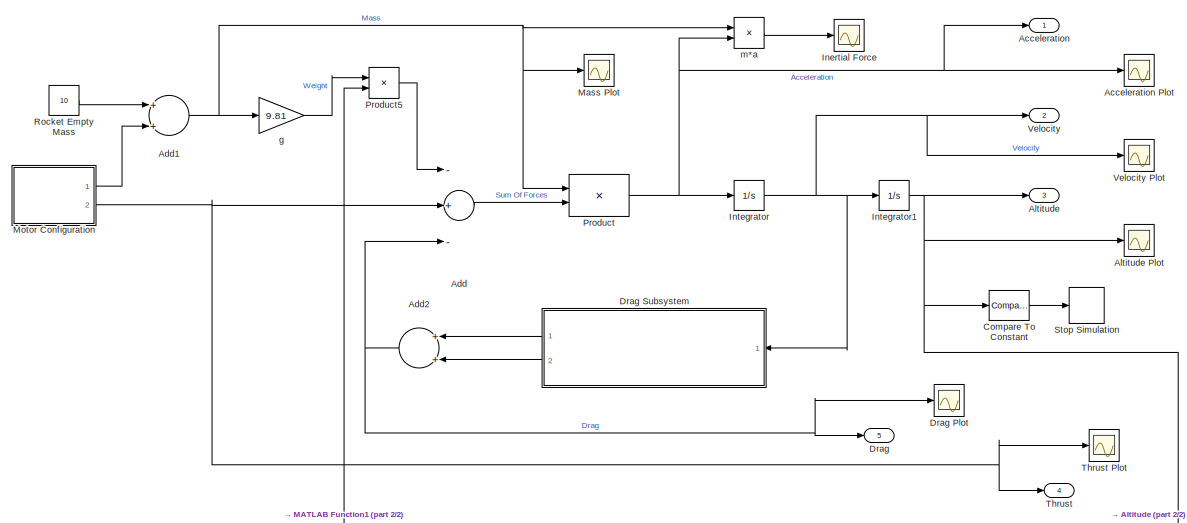
[diagram: root canvas - part 1/2, full width, top band]
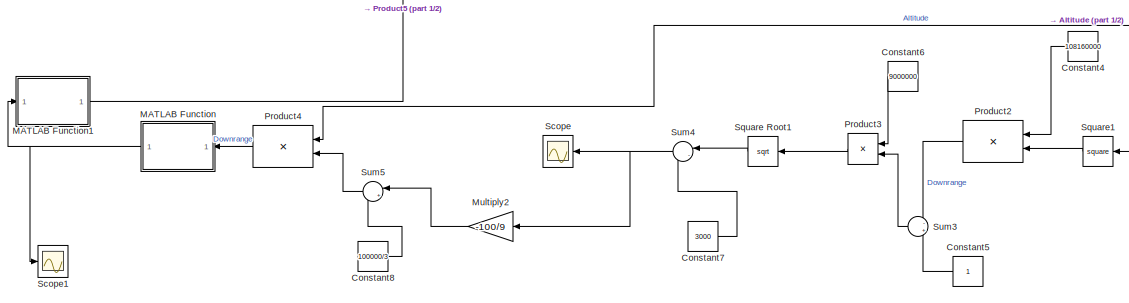
[diagram: root canvas - part 2/2, full width, bottom band]
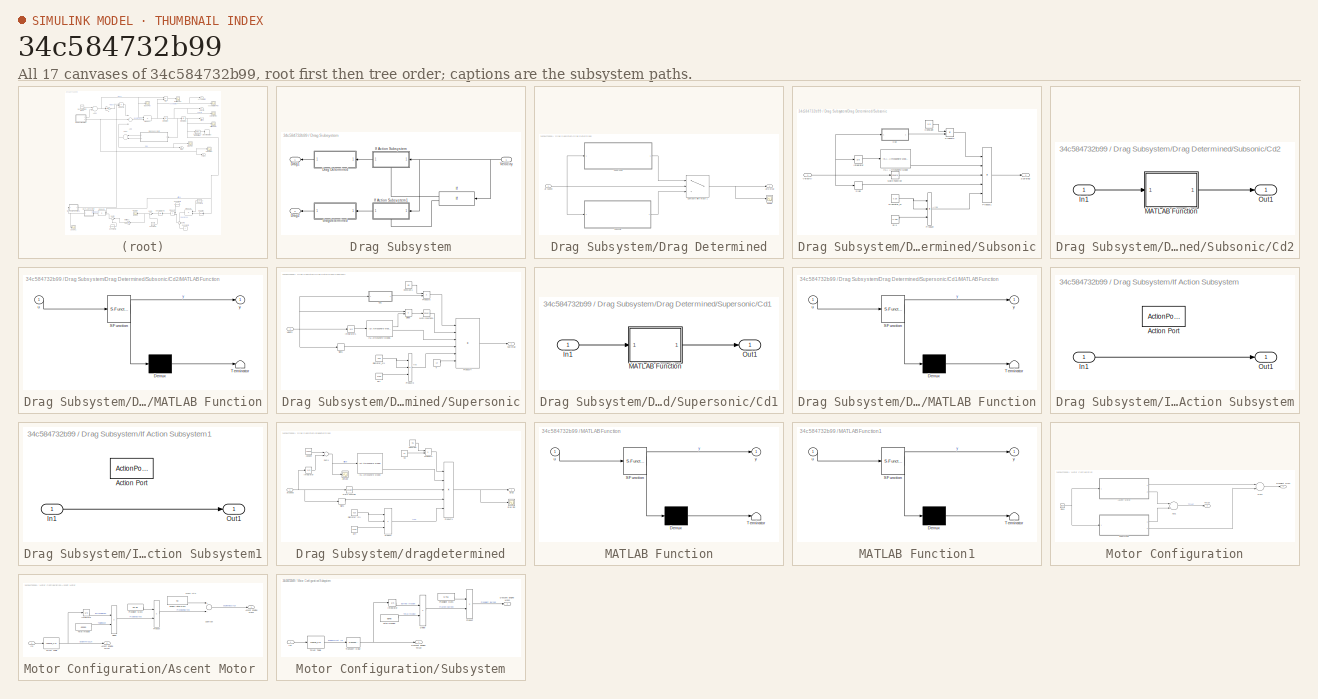
[diagram: thumbnail index - all 17 canvases of the model, root first then tree order]
MODEL slx_34c584732b99
KIND model
CONFIG AbsTol = auto
CONFIG EnableMultiTasking = off
CONFIG FixedStep = auto
CONFIG MaxStep = auto
CONFIG MinStep = auto
CONFIG RelTol = 1e-3
CONFIG SampleTimeConstraint = Unconstrained
CONFIG Solver = VariableStepAuto
CONFIG SolverName = VariableStepAuto
CONFIG StartTime = 0.0
CONFIG StopTime = 185
BLOCK [Outport] Acceleration
  IconDisplay = Port number
BLOCK [Scope] Acceleration Plot
  Floating = off
  NumInputPorts = 1
  Ports = [1]
  ScopeSpecificationString = Simulink.scopes.TimeScopeBlockCfg('CurrentConfiguration', extmgr.ConfigurationSet(extmgr.Configuration('Core','General UI',true,'FigureColor',[1 1 1]),extmgr.Configuration('Core','Source UI',true),extmgr.Configuration('Sources','WiredSimulink',true,'DataLoggingVariableName','ScopeData2'),extmgr.Configuration('Visuals','Time Domain',true,'SerializedDisplays',{struct('MinYLimReal','-147.90855','MaxY...<+1684ch>
BLOCK [Sum] Add
  InputSameDT = off
  Inputs = -+-
  OutDataTypeStr = Inherit: Inherit via internal rule
  Ports = [3, 1]
  SaturateOnIntegerOverflow = off
BLOCK [Sum] Add1
  InputSameDT = off
  OutDataTypeStr = Inherit: Inherit via internal rule
  Ports = [2, 1]
  SaturateOnIntegerOverflow = off
BLOCK [Sum] Add2
  InputSameDT = off
  OutDataTypeStr = Inherit: Inherit via internal rule
  Ports = [2, 1]
  SaturateOnIntegerOverflow = off
BLOCK [Outport] Altitude
  IconDisplay = Port number
  Port = 3
BLOCK [Scope] Altitude Plot
  Floating = off
  NumInputPorts = 1
  Ports = [1]
  ScopeSpecificationString = Simulink.scopes.TimeScopeBlockCfg('CurrentConfiguration', extmgr.ConfigurationSet(extmgr.Configuration('Core','General UI',true,'FigureColor',[1 1 1]),extmgr.Configuration('Core','Source UI',true),extmgr.Configuration('Sources','WiredSimulink',true,'DataLoggingVariableName','Alti','DataLogging',true,'DataLoggingSaveFormat','Array'),extmgr.Configuration('Visuals','Time Domain',true,'SerializedDispl...<+1757ch>
BLOCK [Reference] Compare To Constant  REF=simulink/Logic and Bit
Operations/Compare
To Constant
  Ports = [1, 1]
  SourceBlock = simulink/Logic and Bit\nOperations/Compare\nTo Constant
  SourceProductBaseCode = SL
  SourceProductName = Simulink
  SourceType = Compare To Constant
BLOCK [Constant] Constant4
  Value = 108160000
BLOCK [Constant] Constant5
BLOCK [Constant] Constant6
  Value = 9000000
BLOCK [Constant] Constant7
  Value = 3000
BLOCK [Constant] Constant8
  Value = 100000/3
BLOCK [Outport] Drag
  IconDisplay = Port number
  Port = 5
BLOCK [Scope] Drag Plot
  Floating = off
  NumInputPorts = 1
  Ports = [1]
  ScopeSpecificationString = Simulink.scopes.TimeScopeBlockCfg('CurrentConfiguration', extmgr.ConfigurationSet(extmgr.Configuration('Core','General UI',true,'FigureColor',[1 1 1]),extmgr.Configuration('Core','Source UI',true),extmgr.Configuration('Sources','WiredSimulink',true),extmgr.Configuration('Visuals','Time Domain',true,'SerializedDisplays',{struct('MinYLimReal','-729.05336','MaxYLimReal','4056.061','YLabelReal','Drag ...<+1598ch>
BLOCK [SubSystem] Drag Subsystem
  Ports = [1, 2]
  RequestExecContextInheritance = off
BLOCK [SubSystem] Drag Subsystem/Drag Determined
  Ports = [1, 1]
  RequestExecContextInheritance = off
BLOCK [Outport] Drag Subsystem/Drag Determined/Aero-drag
  IconDisplay = Port number
BLOCK [Inport] Drag Subsystem/Drag Determined/Air-speed
  IconDisplay = Port number
BLOCK [Switch] Drag Subsystem/Drag Determined/Compare with Mach 1
  Criteria = u2 > Threshold
  InputSameDT = off
  SaturateOnIntegerOverflow = off
  Threshold = 340
BLOCK [Scope] Drag Subsystem/Drag Determined/Scope
  Floating = off
  NumInputPorts = 1
  Ports = [1]
  ScopeSpecificationString = Simulink.scopes.TimeScopeBlockCfg('CurrentConfiguration', extmgr.ConfigurationSet(extmgr.Configuration('Core','General UI',true),extmgr.Configuration('Core','Source UI',true),extmgr.Configuration('Sources','WiredSimulink',true,'DataLoggingVariableName','ScopeData1'),extmgr.Configuration('Visuals','Time Domain',true,'SerializedDisplays',{struct('MinYLimReal','-344.56894','MaxYLimReal','3101.12048',...<+1439ch>
BLOCK [SubSystem] Drag Subsystem/Drag Determined/Subsonic
  Ports = [1, 1]
  RequestExecContextInheritance = off
BLOCK [SubSystem] Drag Subsystem/Drag Determined/Subsonic/Cd2
  Ports = [1, 1]
  RequestExecContextInheritance = off
  TreatAsAtomicUnit = on
BLOCK [Inport] Drag Subsystem/Drag Determined/Subsonic/Cd2/In1
  IconDisplay = Port number
BLOCK [SubSystem] Drag Subsystem/Drag Determined/Subsonic/Cd2/MATLAB Function
  ErrorFcn = Stateflow.Translate.translate
  PermitHierarchicalResolution = ExplicitOnly
  Ports = [1, 1]
  RequestExecContextInheritance = off
  SFBlockType = MATLAB Function
  TreatAsAtomicUnit = on
BLOCK [Demux] Drag Subsystem/Drag Determined/Subsonic/Cd2/MATLAB Function/ Demux 
  Outputs = 1
  Ports = [1, 1]
BLOCK [S-Function] Drag Subsystem/Drag Determined/Subsonic/Cd2/MATLAB Function/ SFunction 
  EnableBusSupport = on
  FunctionName = sf_sfun
  PortCounts = [1 2]
  Ports = [1, 2]
  SFcnIsStateOwnerBlock = off
  SFunctionDeploymentMode = off
  Tag = Stateflow S-Function 2
BLOCK [Terminator] Drag Subsystem/Drag Determined/Subsonic/Cd2/MATLAB Function/ Terminator 
BLOCK [Inport] Drag Subsystem/Drag Determined/Subsonic/Cd2/MATLAB Function/u
  IconDisplay = Port number
BLOCK [Outport] Drag Subsystem/Drag Determined/Subsonic/Cd2/MATLAB Function/y
  IconDisplay = Port number
BLOCK [Outport] Drag Subsystem/Drag Determined/Subsonic/Cd2/Out1
  IconDisplay = Port number
BLOCK [Constant] Drag Subsystem/Drag Determined/Subsonic/Constant
  Value = 0.5
BLOCK [Constant] Drag Subsystem/Drag Determined/Subsonic/Diameter_m
  Value = 0.25
BLOCK [Reference] Drag Subsystem/Drag Determined/Subsonic/ISA Atmosphere Model  REF=aerolibatmos2/ISA Atmosphere Model
  Ports = [1, 4]
  SourceBlock = aerolibatmos2/ISA Atmosphere Model
  SourceProductBaseCode = AE
  SourceProductName = Aerospace Blockset
  SourceType = International Standard Atmosphere Model
BLOCK [Integrator] Drag Subsystem/Drag Determined/Subsonic/Integrator
  Ports = [1, 1]
BLOCK [Math] Drag Subsystem/Drag Determined/Subsonic/Math Function
  Operator = square
  Ports = [1, 1]
BLOCK [Product] Drag Subsystem/Drag Determined/Subsonic/Product
  InputSameDT = off
  Inputs = 3
  OutDataTypeStr = Inherit: Inherit via internal rule
  Ports = [3, 1]
  RndMeth = Floor
  SaturateOnIntegerOverflow = off
BLOCK [Product] Drag Subsystem/Drag Determined/Subsonic/Product1
  InputSameDT = off
  Inputs = 5
  OutDataTypeStr = Inherit: Inherit via internal rule
  Ports = [5, 1]
  RndMeth = Floor
  SaturateOnIntegerOverflow = off
BLOCK [Product] Drag Subsystem/Drag Determined/Subsonic/Product2
  InputSameDT = off
  OutDataTypeStr = Inherit: Inherit via internal rule
  Ports = [2, 1]
  RndMeth = Floor
  SaturateOnIntegerOverflow = off
BLOCK [Signum] Drag Subsystem/Drag Determined/Subsonic/Sign
BLOCK [Outport] Drag Subsystem/Drag Determined/Subsonic/Sub-drag
  IconDisplay = Port number
BLOCK [Inport] Drag Subsystem/Drag Determined/Subsonic/Velocity
  IconDisplay = Port number
BLOCK [Constant] Drag Subsystem/Drag Determined/Subsonic/pi//4
  Value = 0.785
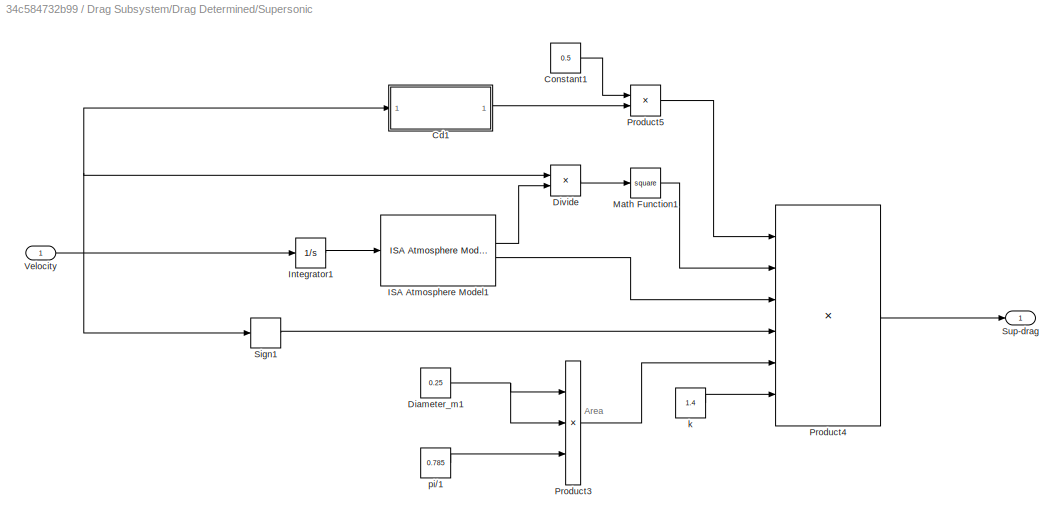
BLOCK [SubSystem] Drag Subsystem/Drag Determined/Supersonic
  Ports = [1, 1]
  RequestExecContextInheritance = off
BLOCK [SubSystem] Drag Subsystem/Drag Determined/Supersonic/Cd1
  Ports = [1, 1]
  RequestExecContextInheritance = off
  TreatAsAtomicUnit = on
BLOCK [Inport] Drag Subsystem/Drag Determined/Supersonic/Cd1/In1
  IconDisplay = Port number
BLOCK [SubSystem] Drag Subsystem/Drag Determined/Supersonic/Cd1/MATLAB Function
  ErrorFcn = Stateflow.Translate.translate
  PermitHierarchicalResolution = ExplicitOnly
  Ports = [1, 1]
  RequestExecContextInheritance = off
  SFBlockType = MATLAB Function
  TreatAsAtomicUnit = on
BLOCK [Demux] Drag Subsystem/Drag Determined/Supersonic/Cd1/MATLAB Function/ Demux 
  Outputs = 1
  Ports = [1, 1]
BLOCK [S-Function] Drag Subsystem/Drag Determined/Supersonic/Cd1/MATLAB Function/ SFunction 
  EnableBusSupport = on
  FunctionName = sf_sfun
  PortCounts = [1 2]
  Ports = [1, 2]
  SFcnIsStateOwnerBlock = off
  SFunctionDeploymentMode = off
  Tag = Stateflow S-Function 1
BLOCK [Terminator] Drag Subsystem/Drag Determined/Supersonic/Cd1/MATLAB Function/ Terminator 
BLOCK [Inport] Drag Subsystem/Drag Determined/Supersonic/Cd1/MATLAB Function/u
  IconDisplay = Port number
BLOCK [Outport] Drag Subsystem/Drag Determined/Supersonic/Cd1/MATLAB Function/y
  IconDisplay = Port number
BLOCK [Outport] Drag Subsystem/Drag Determined/Supersonic/Cd1/Out1
  IconDisplay = Port number
BLOCK [Constant] Drag Subsystem/Drag Determined/Supersonic/Constant1
  Value = 0.5
BLOCK [Constant] Drag Subsystem/Drag Determined/Supersonic/Diameter_m1
  Value = 0.25
BLOCK [Product] Drag Subsystem/Drag Determined/Supersonic/Divide
  InputSameDT = off
  Inputs = */
  OutDataTypeStr = Inherit: Inherit via internal rule
  Ports = [2, 1]
  RndMeth = Floor
  SaturateOnIntegerOverflow = off
BLOCK [Reference] Drag Subsystem/Drag Determined/Supersonic/ISA Atmosphere Model1  REF=aerolibatmos2/ISA Atmosphere Model
  Ports = [1, 4]
  SourceBlock = aerolibatmos2/ISA Atmosphere Model
  SourceProductBaseCode = AE
  SourceProductName = Aerospace Blockset
  SourceType = International Standard Atmosphere Model
BLOCK [Integrator] Drag Subsystem/Drag Determined/Supersonic/Integrator1
  Ports = [1, 1]
BLOCK [Math] Drag Subsystem/Drag Determined/Supersonic/Math Function1
  Operator = square
  Ports = [1, 1]
BLOCK [Product] Drag Subsystem/Drag Determined/Supersonic/Product3
  InputSameDT = off
  Inputs = 3
  OutDataTypeStr = Inherit: Inherit via internal rule
  Ports = [3, 1]
  RndMeth = Floor
  SaturateOnIntegerOverflow = off
BLOCK [Product] Drag Subsystem/Drag Determined/Supersonic/Product4
  InputSameDT = off
  Inputs = 6
  OutDataTypeStr = Inherit: Inherit via internal rule
  Ports = [6, 1]
  RndMeth = Floor
  SaturateOnIntegerOverflow = off
BLOCK [Product] Drag Subsystem/Drag Determined/Supersonic/Product5
  InputSameDT = off
  OutDataTypeStr = Inherit: Inherit via internal rule
  Ports = [2, 1]
  RndMeth = Floor
  SaturateOnIntegerOverflow = off
BLOCK [Signum] Drag Subsystem/Drag Determined/Supersonic/Sign1
BLOCK [Outport] Drag Subsystem/Drag Determined/Supersonic/Sup-drag
  IconDisplay = Port number
BLOCK [Inport] Drag Subsystem/Drag Determined/Supersonic/Velocity
  IconDisplay = Port number
BLOCK [Constant] Drag Subsystem/Drag Determined/Supersonic/k
  Value = 1.4
BLOCK [Constant] Drag Subsystem/Drag Determined/Supersonic/pi//1
  Value = 0.785
BLOCK [Outport] Drag Subsystem/Drag1
  IconDisplay = Port number
BLOCK [Outport] Drag Subsystem/Drag2
  IconDisplay = Port number
  Port = 2
BLOCK [If] Drag Subsystem/If
  Ports = [1, 2]
BLOCK [SubSystem] Drag Subsystem/If Action Subsystem
  Ports = [1, 1, 0, 0, 0, 0, 0, 1]
  RequestExecContextInheritance = off
  TreatAsAtomicUnit = on
BLOCK [ActionPort] Drag Subsystem/If Action Subsystem/Action Port
  ActionPortLabel = if(u1 > 0)
BLOCK [Inport] Drag Subsystem/If Action Subsystem/In1
  IconDisplay = Port number
BLOCK [Outport] Drag Subsystem/If Action Subsystem/Out1
  IconDisplay = Port number
BLOCK [SubSystem] Drag Subsystem/If Action Subsystem1
  Ports = [1, 1, 0, 0, 0, 0, 0, 1]
  RequestExecContextInheritance = off
  TreatAsAtomicUnit = on
BLOCK [ActionPort] Drag Subsystem/If Action Subsystem1/Action Port
  ActionPortLabel = else
BLOCK [Inport] Drag Subsystem/If Action Subsystem1/In1
  IconDisplay = Port number
BLOCK [Outport] Drag Subsystem/If Action Subsystem1/Out1
  IconDisplay = Port number
BLOCK [Inport] Drag Subsystem/Velocity
  IconDisplay = Port number
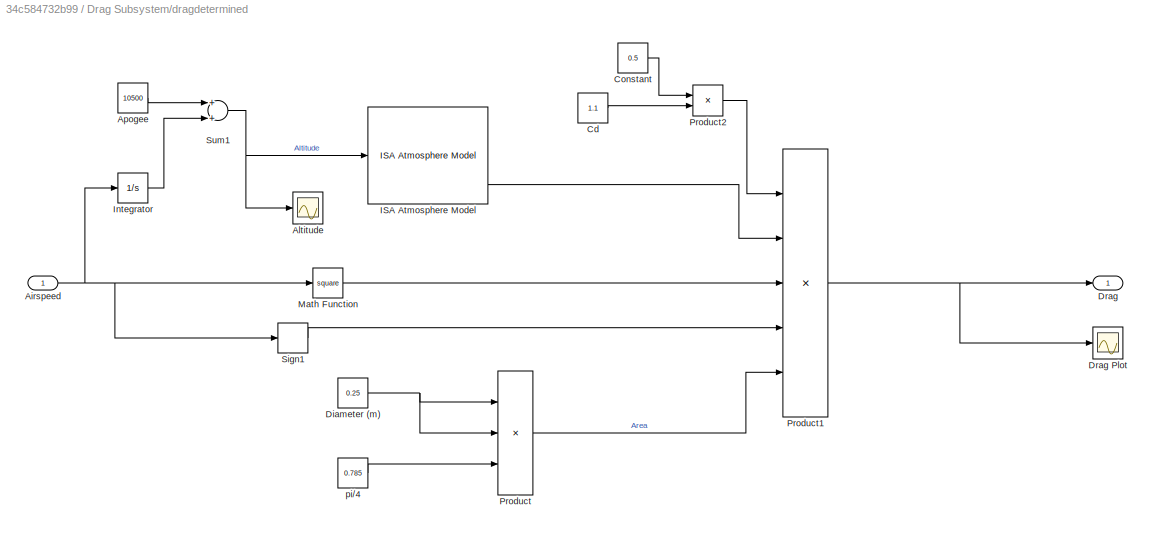
BLOCK [SubSystem] Drag Subsystem/dragdetermined
  Ports = [1, 1]
  RequestExecContextInheritance = off
BLOCK [Inport] Drag Subsystem/dragdetermined/Airspeed
  IconDisplay = Port number
BLOCK [Scope] Drag Subsystem/dragdetermined/Altitude 
  Floating = off
  NumInputPorts = 1
  Ports = [1]
  ScopeSpecificationString = Simulink.scopes.TimeScopeBlockCfg('CurrentConfiguration', extmgr.ConfigurationSet(extmgr.Configuration('Core','General UI',true),extmgr.Configuration('Core','Source UI',true),extmgr.Configuration('Sources','WiredSimulink',true,'DataLoggingVariableName','ScopeData2'),extmgr.Configuration('Visuals','Time Domain',true,'SerializedDisplays',{struct('MinYLimReal','-1800.41568','MaxYLimReal','11311.1573'...<+1439ch>
BLOCK [Constant] Drag Subsystem/dragdetermined/Apogee
  Value = 10500
BLOCK [Constant] Drag Subsystem/dragdetermined/Cd
  Value = 1.1
BLOCK [Constant] Drag Subsystem/dragdetermined/Constant
  Value = 0.5
BLOCK [Constant] Drag Subsystem/dragdetermined/Diameter (m)
  Value = 0.25
BLOCK [Outport] Drag Subsystem/dragdetermined/Drag
  IconDisplay = Port number
BLOCK [Scope] Drag Subsystem/dragdetermined/Drag Plot 
  Floating = off
  NumInputPorts = 1
  Ports = [1]
  ScopeSpecificationString = Simulink.scopes.TimeScopeBlockCfg('CurrentConfiguration', extmgr.ConfigurationSet(extmgr.Configuration('Core','General UI',true),extmgr.Configuration('Core','Source UI',true),extmgr.Configuration('Sources','WiredSimulink',true,'DataLoggingVariableName','ScopeData1'),extmgr.Configuration('Visuals','Time Domain',true,'SerializedDisplays',{struct('MinYLimReal','-270.61807','MaxYLimReal','2435.56264',...<+1439ch>
BLOCK [Reference] Drag Subsystem/dragdetermined/ISA Atmosphere Model  REF=aerolibatmos2/ISA Atmosphere Model
  Ports = [1, 4]
  SourceBlock = aerolibatmos2/ISA Atmosphere Model
  SourceProductBaseCode = AE
  SourceProductName = Aerospace Blockset
  SourceType = International Standard Atmosphere Model
BLOCK [Integrator] Drag Subsystem/dragdetermined/Integrator
  Ports = [1, 1]
BLOCK [Math] Drag Subsystem/dragdetermined/Math Function
  Operator = square
  Ports = [1, 1]
BLOCK [Product] Drag Subsystem/dragdetermined/Product
  InputSameDT = off
  Inputs = 3
  OutDataTypeStr = Inherit: Inherit via internal rule
  Ports = [3, 1]
  RndMeth = Floor
  SaturateOnIntegerOverflow = off
BLOCK [Product] Drag Subsystem/dragdetermined/Product1
  InputSameDT = off
  Inputs = 5
  OutDataTypeStr = Inherit: Inherit via internal rule
  Ports = [5, 1]
  RndMeth = Floor
  SaturateOnIntegerOverflow = off
BLOCK [Product] Drag Subsystem/dragdetermined/Product2
  InputSameDT = off
  OutDataTypeStr = Inherit: Inherit via internal rule
  Ports = [2, 1]
  RndMeth = Floor
  SaturateOnIntegerOverflow = off
BLOCK [Signum] Drag Subsystem/dragdetermined/Sign1
BLOCK [Sum] Drag Subsystem/dragdetermined/Sum1
  InputSameDT = off
  OutDataTypeStr = Inherit: Inherit via internal rule
  Ports = [2, 1]
  SaturateOnIntegerOverflow = off
BLOCK [Constant] Drag Subsystem/dragdetermined/pi//4
  Value = 0.785
BLOCK [Scope] Inertial Force
  Floating = off
  NumInputPorts = 1
  Ports = [1]
  ScopeSpecificationString = Simulink.scopes.TimeScopeBlockCfg('CurrentConfiguration', extmgr.ConfigurationSet(extmgr.Configuration('Core','General UI',true,'FigureColor',[1 1 1]),extmgr.Configuration('Core','Source UI',true),extmgr.Configuration('Sources','WiredSimulink',true,'DataLoggingVariableName','ScopeData1'),extmgr.Configuration('Visuals','Time Domain',true,'SerializedDisplays',{struct('MinYLimReal','-3845.94652','Max...<+1674ch>
BLOCK [Integrator] Integrator
  Ports = [1, 1]
BLOCK [Integrator] Integrator1
  Ports = [1, 1]
BLOCK [SubSystem] MATLAB Function
  ErrorFcn = Stateflow.Translate.translate
  PermitHierarchicalResolution = ExplicitOnly
  Ports = [1, 1]
  RequestExecContextInheritance = off
  SFBlockType = MATLAB Function
  TreatAsAtomicUnit = on
BLOCK [Demux] MATLAB Function/ Demux 
  Outputs = 1
  Ports = [1, 1]
BLOCK [S-Function] MATLAB Function/ SFunction 
  EnableBusSupport = on
  FunctionName = sf_sfun
  PortCounts = [1 2]
  Ports = [1, 2]
  SFcnIsStateOwnerBlock = off
  SFunctionDeploymentMode = off
  Tag = Stateflow S-Function 3
BLOCK [Terminator] MATLAB Function/ Terminator 
BLOCK [Inport] MATLAB Function/u
  IconDisplay = Port number
BLOCK [Outport] MATLAB Function/y
  IconDisplay = Port number
BLOCK [SubSystem] MATLAB Function1
  ErrorFcn = Stateflow.Translate.translate
  PermitHierarchicalResolution = ExplicitOnly
  Ports = [1, 1]
  RequestExecContextInheritance = off
  SFBlockType = MATLAB Function
  TreatAsAtomicUnit = on
BLOCK [Demux] MATLAB Function1/ Demux 
  Outputs = 1
  Ports = [1, 1]
BLOCK [S-Function] MATLAB Function1/ SFunction 
  EnableBusSupport = on
  FunctionName = sf_sfun
  PortCounts = [1 2]
  Ports = [1, 2]
  SFcnIsStateOwnerBlock = off
  SFunctionDeploymentMode = off
  Tag = Stateflow S-Function 4
BLOCK [Terminator] MATLAB Function1/ Terminator 
BLOCK [Inport] MATLAB Function1/u
  IconDisplay = Port number
BLOCK [Outport] MATLAB Function1/y
  IconDisplay = Port number
BLOCK [Scope] Mass Plot
  Floating = off
  NumInputPorts = 1
  Ports = [1]
  ScopeSpecificationString = Simulink.scopes.TimeScopeBlockCfg('CurrentConfiguration', extmgr.ConfigurationSet(extmgr.Configuration('Core','General UI',true,'FigureColor',[1 1 1]),extmgr.Configuration('Core','Source UI',true),extmgr.Configuration('Sources','WiredSimulink',true,'DataLoggingVariableName','ScopeData1'),extmgr.Configuration('Visuals','Time Domain',true,'SerializedDisplays',{struct('MinYLimReal','16.37368','MaxYLi...<+1685ch>
BLOCK [SubSystem] Motor Configuration
  Ports = [0, 2]
  RequestExecContextInheritance = off
  TreatAsAtomicUnit = on
BLOCK [Sum] Motor Configuration/Add1
  InputSameDT = off
  OutDataTypeStr = Inherit: Inherit via internal rule
  Ports = [2, 1]
  SaturateOnIntegerOverflow = off
BLOCK [SubSystem] Motor Configuration/Ascent Motor 
  Ports = [1, 2]
  RequestExecContextInheritance = off
BLOCK [Outport] Motor Configuration/Ascent Motor /Ascent Engine Mass
  IconDisplay = Port number
BLOCK [Outport] Motor Configuration/Ascent Motor /Ascent Engine Thrust
  IconDisplay = Port number
  Port = 2
BLOCK [Product] Motor Configuration/Ascent Motor /Divide
  InputSameDT = off
  Inputs = */
  OutDataTypeStr = Inherit: Inherit via internal rule
  Ports = [2, 1]
  RndMeth = Floor
  SaturateOnIntegerOverflow = off
BLOCK [Constant] Motor Configuration/Ascent Motor /Engine Initial Mass
  Value = 40
BLOCK [Inport] Motor Configuration/Ascent Motor /In1
  IconDisplay = Port number
BLOCK [Integrator] Motor Configuration/Ascent Motor /Integrator
  Ports = [1, 1]
BLOCK [Product] Motor Configuration/Ascent Motor /Product
  InputSameDT = off
  OutDataTypeStr = Inherit: Inherit via internal rule
  Ports = [2, 1]
  RndMeth = Floor
  SaturateOnIntegerOverflow = off
BLOCK [Constant] Motor Configuration/Ascent Motor /Propellant Mass
  Value = 26.35
BLOCK [Sum] Motor Configuration/Ascent Motor /Subtract
  InputSameDT = off
  Inputs = +-
  OutDataTypeStr = Inherit: Inherit via internal rule
  Ports = [2, 1]
  SaturateOnIntegerOverflow = off
BLOCK [Lookup_n-D] Motor Configuration/Ascent Motor /Thrust Table
  BreakpointsForDimension1 = Time
  InputSameDT = off
  InternalRulePriority = Speed
  NumberOfTableDimensions = 1
  Ports = [1, 1]
  RndMeth = Simplest
  Table = Thrust
BLOCK [Constant] Motor Configuration/Ascent Motor /Total Impulse
  Value = 62000
BLOCK [Clock] Motor Configuration/Clock
  Decimation = 100
  DisplayTime = on
BLOCK [Sum] Motor Configuration/Mass
  InputSameDT = off
  Inputs = +-
  OutDataTypeStr = Inherit: Inherit via internal rule
  Ports = [2, 1]
  SaturateOnIntegerOverflow = off
BLOCK [Outport] Motor Configuration/Propellant Mass
  IconDisplay = Port number
BLOCK [SubSystem] Motor Configuration/Subsystem
  Ports = [1, 2]
  RequestExecContextInheritance = off
BLOCK [Outport] Motor Configuration/Subsystem/Descent Engine Mass
  IconDisplay = Port number
  Port = 2
BLOCK [Outport] Motor Configuration/Subsystem/Descent Engine Thrust 
  IconDisplay = Port number
BLOCK [Product] Motor Configuration/Subsystem/Divide
  InputSameDT = off
  Inputs = */
  OutDataTypeStr = Inherit: Inherit via internal rule
  Ports = [2, 1]
  RndMeth = Floor
  SaturateOnIntegerOverflow = off
BLOCK [Inport] Motor Configuration/Subsystem/In1
  IconDisplay = Port number
BLOCK [Integrator] Motor Configuration/Subsystem/Integrator
  Ports = [1, 1]
BLOCK [Product] Motor Configuration/Subsystem/Product
  InputSameDT = off
  OutDataTypeStr = Inherit: Inherit via internal rule
  Ports = [2, 1]
  RndMeth = Floor
  SaturateOnIntegerOverflow = off
BLOCK [Constant] Motor Configuration/Subsystem/Propellant Mass
  Value = 3.711
BLOCK [Lookup_n-D] Motor Configuration/Subsystem/Thrust Table
  BreakpointsForDimension1 = time
  ExtrapMethod = Clip
  IndexSearchMethod = Linear search
  InternalRulePriority = Speed
  NumberOfTableDimensions = 1
  Ports = [1, 1]
  RndMeth = Simplest
  Table = thrust
BLOCK [Constant] Motor Configuration/Subsystem/Total Impulse
  Value = 8848
BLOCK [TransportDelay] Motor Configuration/Subsystem/Transport Delay
  DelayTime = 129.75
  Ports = [1, 1]
BLOCK [Outport] Motor Configuration/Thrust
  IconDisplay = Port number
  Port = 2
BLOCK [Gain] Multiply2
  Gain = -100/9
  OutDataTypeStr = Inherit: Inherit via internal rule
  ParamDataTypeStr = Inherit: Inherit via internal rule
  SaturateOnIntegerOverflow = off
BLOCK [Product] Product
  InputSameDT = off
  Inputs = /*
  OutDataTypeStr = Inherit: Inherit via internal rule
  Ports = [2, 1]
  RndMeth = Floor
  SaturateOnIntegerOverflow = off
BLOCK [Product] Product2
  InputSameDT = off
  Inputs = /*
  OutDataTypeStr = Inherit: Inherit via internal rule
  Ports = [2, 1]
  RndMeth = Floor
  SaturateOnIntegerOverflow = off
BLOCK [Product] Product3
  InputSameDT = off
  OutDataTypeStr = Inherit: Inherit via internal rule
  Ports = [2, 1]
  RndMeth = Floor
  SaturateOnIntegerOverflow = off
BLOCK [Product] Product4
  InputSameDT = off
  Inputs = /*
  OutDataTypeStr = Inherit: Inherit via internal rule
  Ports = [2, 1]
  RndMeth = Floor
  SaturateOnIntegerOverflow = off
BLOCK [Product] Product5
  InputSameDT = off
  OutDataTypeStr = Inherit: Inherit via internal rule
  Ports = [2, 1]
  RndMeth = Floor
  SaturateOnIntegerOverflow = off
BLOCK [Constant] Rocket Empty Mass
  Value = 10
BLOCK [Scope] Scope
  Floating = off
  NumInputPorts = 1
  Ports = [1]
  ScopeSpecificationString = Simulink.scopes.TimeScopeBlockCfg('CurrentConfiguration', extmgr.ConfigurationSet(extmgr.Configuration('Core','General UI',true),extmgr.Configuration('Core','Source UI',true),extmgr.Configuration('Sources','WiredSimulink',true,'DataLoggingVariableName','ScopeData2'),extmgr.Configuration('Visuals','Time Domain',true,'SerializedDisplays',{struct('MinYLimReal','-1.00000','MaxYLimReal','1.00000','YLab...<+1397ch>
BLOCK [Scope] Scope1
  Floating = off
  NumInputPorts = 1
  Ports = [1]
  ScopeSpecificationString = Simulink.scopes.TimeScopeBlockCfg('CurrentConfiguration', extmgr.ConfigurationSet(extmgr.Configuration('Core','General UI',true),extmgr.Configuration('Core','Source UI',true),extmgr.Configuration('Sources','WiredSimulink',true,'DataLoggingVariableName','ScopeData3'),extmgr.Configuration('Visuals','Time Domain',true,'SerializedDisplays',{struct('MinYLimReal','-1.9635','MaxYLimReal','1.9635','YLabel...<+1403ch>
BLOCK [Sqrt] Square Root1
BLOCK [Math] Square1
  Operator = square
  Ports = [1, 1]
  SignedPower = off
BLOCK [Stop] Stop Simulation
BLOCK [Sum] Sum3
  IconShape = round
  InputSameDT = off
  Inputs = -+
  OutDataTypeStr = Inherit: Inherit via internal rule
  Ports = [2, 1]
  SaturateOnIntegerOverflow = off
BLOCK [Sum] Sum4
  IconShape = round
  InputSameDT = off
  Inputs = |-+
  OutDataTypeStr = Inherit: Inherit via internal rule
  Ports = [2, 1]
  SaturateOnIntegerOverflow = off
BLOCK [Sum] Sum5
  IconShape = round
  InputSameDT = off
  Inputs = |++
  OutDataTypeStr = Inherit: Inherit via internal rule
  Ports = [2, 1]
  SaturateOnIntegerOverflow = off
BLOCK [Outport] Thrust
  IconDisplay = Port number
  Port = 4
BLOCK [Scope] Thrust Plot
  Floating = off
  NumInputPorts = 1
  Ports = [1]
  ScopeSpecificationString = Simulink.scopes.TimeScopeBlockCfg('CurrentConfiguration', extmgr.ConfigurationSet(extmgr.Configuration('Core','General UI',true,'FigureColor',[1 1 1]),extmgr.Configuration('Core','Source UI',true),extmgr.Configuration('Sources','WiredSimulink',true,'DataLoggingVariableName','ScopeData1'),extmgr.Configuration('Visuals','Time Domain',true,'SerializedDisplays',{struct('MinYLimReal','-894.23612','MaxY...<+1694ch>
BLOCK [Outport] Velocity
  IconDisplay = Port number
  Port = 2
BLOCK [Scope] Velocity Plot
  Floating = off
  NumInputPorts = 1
  Ports = [1]
  ScopeSpecificationString = Simulink.scopes.TimeScopeBlockCfg('CurrentConfiguration', extmgr.ConfigurationSet(extmgr.Configuration('Core','General UI',true,'FigureColor',[1 1 1]),extmgr.Configuration('Core','Source UI',true),extmgr.Configuration('Sources','WiredSimulink',true,'DataLoggingVariableName','ScopeData3'),extmgr.Configuration('Visuals','Time Domain',true,'SerializedDisplays',{struct('MinYLimReal','-222.82039','MaxY...<+1680ch>
BLOCK [Gain] g
  Gain = 9.81
  OutDataTypeStr = Inherit: Inherit via internal rule
  ParamDataTypeStr = Inherit: Inherit via internal rule
  SaturateOnIntegerOverflow = off
BLOCK [Product] m*a
  InputSameDT = off
  OutDataTypeStr = Inherit: Inherit via internal rule
  Ports = [2, 1]
  RndMeth = Floor
  SaturateOnIntegerOverflow = off
ANNOTATION Drag Subsystem/Drag Determined/Subsonic: Area
ANNOTATION Drag Subsystem/Drag Determined/Supersonic: Area
ANNOTATION Motor Configuration/Ascent Motor : Engine Total
NET Add1:1 -> Mass Plot:1, Product:1, g:1, m*a:1
NET Add2:1 -> Add:3, Drag Plot:1, Drag:1
LINE Add:1 -> Product:2
LINE Compare To Constant:1 -> Stop Simulation:1
LINE Constant4:1 -> Product2:1
LINE Constant5:1 -> Sum3:2
LINE Constant6:1 -> Product3:1
LINE Constant7:1 -> Sum4:2
LINE Constant8:1 -> Sum5:2
NET Drag Subsystem/Drag Determined/Air-speed:1 -> Drag Subsystem/Drag Determined/Compare with Mach 1:2, Drag Subsystem/Drag Determined/Subsonic:1, Drag Subsystem/Drag Determined/Supersonic:1
NET Drag Subsystem/Drag Determined/Compare with Mach 1:1 -> Drag Subsystem/Drag Determined/Aero-drag:1, Drag Subsystem/Drag Determined/Scope:1
LINE Drag Subsystem/Drag Determined/Subsonic/Cd2/In1:1 -> Drag Subsystem/Drag Determined/Subsonic/Cd2/MATLAB Function:1
LINE Drag Subsystem/Drag Determined/Subsonic/Cd2/MATLAB Function:1 -> Drag Subsystem/Drag Determined/Subsonic/Cd2/Out1:1
LINE Drag Subsystem/Drag Determined/Subsonic/Cd2:1 -> Drag Subsystem/Drag Determined/Subsonic/Product2:2
LINE Drag Subsystem/Drag Determined/Subsonic/Constant:1 -> Drag Subsystem/Drag Determined/Subsonic/Product2:1
NET Drag Subsystem/Drag Determined/Subsonic/Diameter_m:1 -> Drag Subsystem/Drag Determined/Subsonic/Product:1, Drag Subsystem/Drag Determined/Subsonic/Product:2
LINE Drag Subsystem/Drag Determined/Subsonic/ISA Atmosphere Model:4 -> Drag Subsystem/Drag Determined/Subsonic/Product1:2
LINE Drag Subsystem/Drag Determined/Subsonic/Integrator:1 -> Drag Subsystem/Drag Determined/Subsonic/ISA Atmosphere Model:1
LINE Drag Subsystem/Drag Determined/Subsonic/Math Function:1 -> Drag Subsystem/Drag Determined/Subsonic/Product1:3
LINE Drag Subsystem/Drag Determined/Subsonic/Product1:1 -> Drag Subsystem/Drag Determined/Subsonic/Sub-drag:1
LINE Drag Subsystem/Drag Determined/Subsonic/Product2:1 -> Drag Subsystem/Drag Determined/Subsonic/Product1:1
LINE Drag Subsystem/Drag Determined/Subsonic/Product:1 -> Drag Subsystem/Drag Determined/Subsonic/Product1:5
LINE Drag Subsystem/Drag Determined/Subsonic/Sign:1 -> Drag Subsystem/Drag Determined/Subsonic/Product1:4
NET Drag Subsystem/Drag Determined/Subsonic/Velocity:1 -> Drag Subsystem/Drag Determined/Subsonic/Cd2:1, Drag Subsystem/Drag Determined/Subsonic/Integrator:1, Drag Subsystem/Drag Determined/Subsonic/Math Function:1, Drag Subsystem/Drag Determined/Subsonic/Sign:1
LINE Drag Subsystem/Drag Determined/Subsonic/pi//4:1 -> Drag Subsystem/Drag Determined/Subsonic/Product:3
LINE Drag Subsystem/Drag Determined/Subsonic:1 -> Drag Subsystem/Drag Determined/Compare with Mach 1:3
LINE Drag Subsystem/Drag Determined/Supersonic/Cd1/In1:1 -> Drag Subsystem/Drag Determined/Supersonic/Cd1/MATLAB Function:1
LINE Drag Subsystem/Drag Determined/Supersonic/Cd1/MATLAB Function:1 -> Drag Subsystem/Drag Determined/Supersonic/Cd1/Out1:1
LINE Drag Subsystem/Drag Determined/Supersonic/Cd1:1 -> Drag Subsystem/Drag Determined/Supersonic/Product5:2
LINE Drag Subsystem/Drag Determined/Supersonic/Constant1:1 -> Drag Subsystem/Drag Determined/Supersonic/Product5:1
NET Drag Subsystem/Drag Determined/Supersonic/Diameter_m1:1 -> Drag Subsystem/Drag Determined/Supersonic/Product3:1, Drag Subsystem/Drag Determined/Supersonic/Product3:2
LINE Drag Subsystem/Drag Determined/Supersonic/Divide:1 -> Drag Subsystem/Drag Determined/Supersonic/Math Function1:1
LINE Drag Subsystem/Drag Determined/Supersonic/ISA Atmosphere Model1:2 -> Drag Subsystem/Drag Determined/Supersonic/Divide:2
LINE Drag Subsystem/Drag Determined/Supersonic/ISA Atmosphere Model1:3 -> Drag Subsystem/Drag Determined/Supersonic/Product4:3
LINE Drag Subsystem/Drag Determined/Supersonic/Integrator1:1 -> Drag Subsystem/Drag Determined/Supersonic/ISA Atmosphere Model1:1
LINE Drag Subsystem/Drag Determined/Supersonic/Math Function1:1 -> Drag Subsystem/Drag Determined/Supersonic/Product4:2
LINE Drag Subsystem/Drag Determined/Supersonic/Product3:1 -> Drag Subsystem/Drag Determined/Supersonic/Product4:5
LINE Drag Subsystem/Drag Determined/Supersonic/Product4:1 -> Drag Subsystem/Drag Determined/Supersonic/Sup-drag:1
LINE Drag Subsystem/Drag Determined/Supersonic/Product5:1 -> Drag Subsystem/Drag Determined/Supersonic/Product4:1
LINE Drag Subsystem/Drag Determined/Supersonic/Sign1:1 -> Drag Subsystem/Drag Determined/Supersonic/Product4:4
NET Drag Subsystem/Drag Determined/Supersonic/Velocity:1 -> Drag Subsystem/Drag Determined/Supersonic/Cd1:1, Drag Subsystem/Drag Determined/Supersonic/Divide:1, Drag Subsystem/Drag Determined/Supersonic/Integrator1:1, Drag Subsystem/Drag Determined/Supersonic/Sign1:1
LINE Drag Subsystem/Drag Determined/Supersonic/k:1 -> Drag Subsystem/Drag Determined/Supersonic/Product4:6
LINE Drag Subsystem/Drag Determined/Supersonic/pi//1:1 -> Drag Subsystem/Drag Determined/Supersonic/Product3:3
LINE Drag Subsystem/Drag Determined/Supersonic:1 -> Drag Subsystem/Drag Determined/Compare with Mach 1:1
LINE Drag Subsystem/Drag Determined:1 -> Drag Subsystem/Drag1:1
LINE Drag Subsystem/If Action Subsystem/In1:1 -> Drag Subsystem/If Action Subsystem/Out1:1
LINE Drag Subsystem/If Action Subsystem1/In1:1 -> Drag Subsystem/If Action Subsystem1/Out1:1
LINE Drag Subsystem/If Action Subsystem1:1 -> Drag Subsystem/dragdetermined:1
LINE Drag Subsystem/If Action Subsystem:1 -> Drag Subsystem/Drag Determined:1
LINE Drag Subsystem/If:1 -> Drag Subsystem/If Action Subsystem:ifaction
LINE Drag Subsystem/If:2 -> Drag Subsystem/If Action Subsystem1:ifaction
NET Drag Subsystem/Velocity:1 -> Drag Subsystem/If Action Subsystem1:1, Drag Subsystem/If Action Subsystem:1, Drag Subsystem/If:1
NET Drag Subsystem/dragdetermined/Airspeed:1 -> Drag Subsystem/dragdetermined/Integrator:1, Drag Subsystem/dragdetermined/Math Function:1, Drag Subsystem/dragdetermined/Sign1:1
LINE Drag Subsystem/dragdetermined/Apogee:1 -> Drag Subsystem/dragdetermined/Sum1:1
LINE Drag Subsystem/dragdetermined/Cd:1 -> Drag Subsystem/dragdetermined/Product2:2
LINE Drag Subsystem/dragdetermined/Constant:1 -> Drag Subsystem/dragdetermined/Product2:1
NET Drag Subsystem/dragdetermined/Diameter (m):1 -> Drag Subsystem/dragdetermined/Product:1, Drag Subsystem/dragdetermined/Product:2
LINE Drag Subsystem/dragdetermined/ISA Atmosphere Model:4 -> Drag Subsystem/dragdetermined/Product1:2
LINE Drag Subsystem/dragdetermined/Integrator:1 -> Drag Subsystem/dragdetermined/Sum1:2
LINE Drag Subsystem/dragdetermined/Math Function:1 -> Drag Subsystem/dragdetermined/Product1:3
NET Drag Subsystem/dragdetermined/Product1:1 -> Drag Subsystem/dragdetermined/Drag Plot :1, Drag Subsystem/dragdetermined/Drag:1
LINE Drag Subsystem/dragdetermined/Product2:1 -> Drag Subsystem/dragdetermined/Product1:1
LINE Drag Subsystem/dragdetermined/Product:1 -> Drag Subsystem/dragdetermined/Product1:5
LINE Drag Subsystem/dragdetermined/Sign1:1 -> Drag Subsystem/dragdetermined/Product1:4
NET Drag Subsystem/dragdetermined/Sum1:1 -> Drag Subsystem/dragdetermined/Altitude :1, Drag Subsystem/dragdetermined/ISA Atmosphere Model:1
LINE Drag Subsystem/dragdetermined/pi//4:1 -> Drag Subsystem/dragdetermined/Product:3
LINE Drag Subsystem/dragdetermined:1 -> Drag Subsystem/Drag2:1
LINE Drag Subsystem:1 -> Add2:1
LINE Drag Subsystem:2 -> Add2:2
NET Integrator1:1 -> Altitude Plot:1, Altitude:1, Compare To Constant:1, Product4:1, Square1:1
NET Integrator:1 -> Drag Subsystem:1, Integrator1:1, Velocity Plot:1, Velocity:1
LINE MATLAB Function1:1 -> Product5:2
NET MATLAB Function:1 -> MATLAB Function1:1, Scope1:1
LINE Motor Configuration/Add1:1 -> Motor Configuration/Thrust:1
LINE Motor Configuration/Ascent Motor /Divide:1 -> Motor Configuration/Ascent Motor /Product:2
LINE Motor Configuration/Ascent Motor /Engine Initial Mass:1 -> Motor Configuration/Ascent Motor /Subtract:1
LINE Motor Configuration/Ascent Motor /In1:1 -> Motor Configuration/Ascent Motor /Thrust Table:1
LINE Motor Configuration/Ascent Motor /Integrator:1 -> Motor Configuration/Ascent Motor /Divide:1
LINE Motor Configuration/Ascent Motor /Product:1 -> Motor Configuration/Ascent Motor /Subtract:2
LINE Motor Configuration/Ascent Motor /Propellant Mass:1 -> Motor Configuration/Ascent Motor /Product:1
LINE Motor Configuration/Ascent Motor /Subtract:1 -> Motor Configuration/Ascent Motor /Ascent Engine Mass:1
NET Motor Configuration/Ascent Motor /Thrust Table:1 -> Motor Configuration/Ascent Motor /Ascent Engine Thrust:1, Motor Configuration/Ascent Motor /Integrator:1
LINE Motor Configuration/Ascent Motor /Total Impulse:1 -> Motor Configuration/Ascent Motor /Divide:2
LINE Motor Configuration/Ascent Motor :1 -> Motor Configuration/Mass:1
LINE Motor Configuration/Ascent Motor :2 -> Motor Configuration/Add1:1
NET Motor Configuration/Clock:1 -> Motor Configuration/Ascent Motor :1, Motor Configuration/Subsystem:1
LINE Motor Configuration/Mass:1 -> Motor Configuration/Propellant Mass:1
LINE Motor Configuration/Subsystem/Divide:1 -> Motor Configuration/Subsystem/Product:2
LINE Motor Configuration/Subsystem/In1:1 -> Motor Configuration/Subsystem/Thrust Table:1
LINE Motor Configuration/Subsystem/Integrator:1 -> Motor Configuration/Subsystem/Divide:1
LINE Motor Configuration/Subsystem/Product:1 -> Motor Configuration/Subsystem/Descent Engine Mass:1
LINE Motor Configuration/Subsystem/Propellant Mass:1 -> Motor Configuration/Subsystem/Product:1
LINE Motor Configuration/Subsystem/Thrust Table:1 -> Motor Configuration/Subsystem/Transport Delay:1
LINE Motor Configuration/Subsystem/Total Impulse:1 -> Motor Configuration/Subsystem/Divide:2
NET Motor Configuration/Subsystem/Transport Delay:1 -> Motor Configuration/Subsystem/Descent Engine Thrust :1, Motor Configuration/Subsystem/Integrator:1
LINE Motor Configuration/Subsystem:1 -> Motor Configuration/Add1:2
LINE Motor Configuration/Subsystem:2 -> Motor Configuration/Mass:2
LINE Motor Configuration:1 -> Add1:2
NET Motor Configuration:2 -> Add:2, Thrust Plot:1, Thrust:1
LINE Multiply2:1 -> Sum5:1
LINE Product2:1 -> Sum3:1
LINE Product3:1 -> Square Root1:1
LINE Product4:1 -> MATLAB Function:1
LINE Product5:1 -> Add:1
NET Product:1 -> Acceleration Plot:1, Acceleration:1, Integrator:1, m*a:2
LINE Rocket Empty Mass:1 -> Add1:1
LINE Square Root1:1 -> Sum4:1
LINE Square1:1 -> Product2:2
LINE Sum3:1 -> Product3:2
NET Sum4:1 -> Multiply2:1, Scope:1
LINE Sum5:1 -> Product4:2
LINE g:1 -> Product5:1
LINE m*a:1 -> Inertial Force:1
note: NET lines group one-source signal fan-out (src -> all destinations, sorted); 1:1 wires keep LINE
CHART Drag Subsystem/Drag Determined/Supersonic/Cd1/MATLAB Function states=1 transitions=1
  STATE_LABEL 'eML_blk_kernel()'
  STATE_LABEL "SCRIPT:\nfunction y = fcn(u)\nM=u/340;\np=0;\ncoder.extrinsic('xlsread');\nA = xlsread('<userpath><path>','B2:B201');\ny=0;\nfor i=0:0.01:2\n    j=0+i;\n    k=0.01+i;\n    if (j<M)&&(M<=k)\n        n=1+p;\n        y=A(n);\n    break\n    else\n        p=p+1;\n    end\nend"
CHART Drag Subsystem/Drag Determined/Subsonic/Cd2/MATLAB Function states=1 transitions=1
  STATE_LABEL 'eML_blk_kernel()'
  STATE_LABEL "SCRIPT:\nfunction y = fcn(u)\nM=u/340;\np=0;\ncoder.extrinsic('xlsread');\nA = xlsread('<userpath><path>','B2:B201');\ny=0;\nfor i=0:0.01:2\n    j=0+i;\n    k=0.01+i;\n    if (j<M)&&(M<=k)\n        n=1+p;\n        y=A(n);\n    break\n    else\n        p=p+1;\n    end\nend"
CHART MATLAB Function states=1 transitions=1
  STATE_LABEL 'eML_blk_kernel()'
  STATE_LABEL 'SCRIPT:\nfunction y = fcn(u)\nh=atan(u);\n\ny = h;\n'
CHART MATLAB Function1 states=1 transitions=1
  STATE_LABEL 'eML_blk_kernel()'
  STATE_LABEL 'SCRIPT:\nfunction y = fcn(u)\ni=sin(u);\ny = i;\n'
note: 2 file-system paths scrubbed to <path> (not preserved elsewhere — flat text is the only slx artifact)
